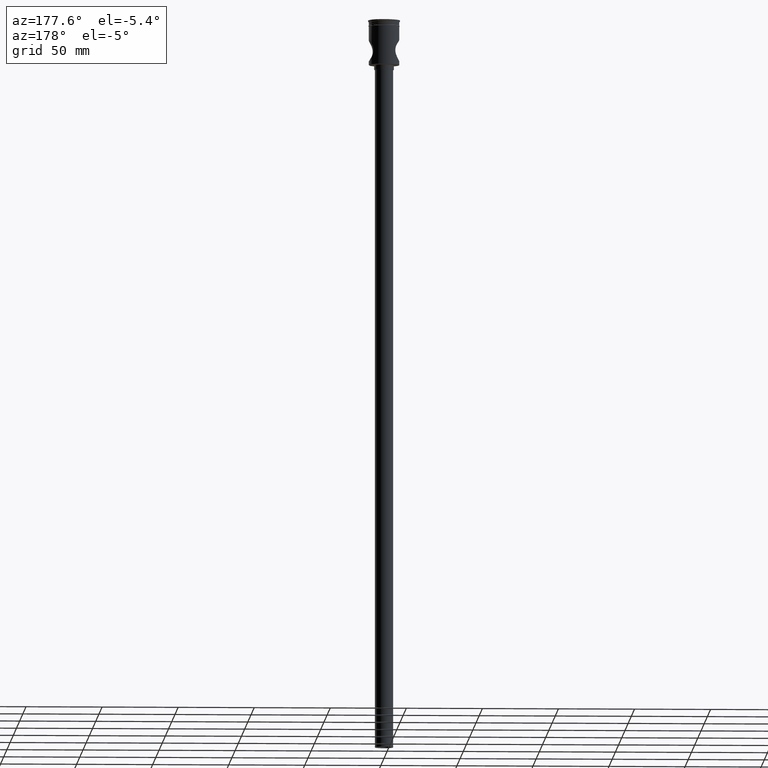
[diagram: clean part render]
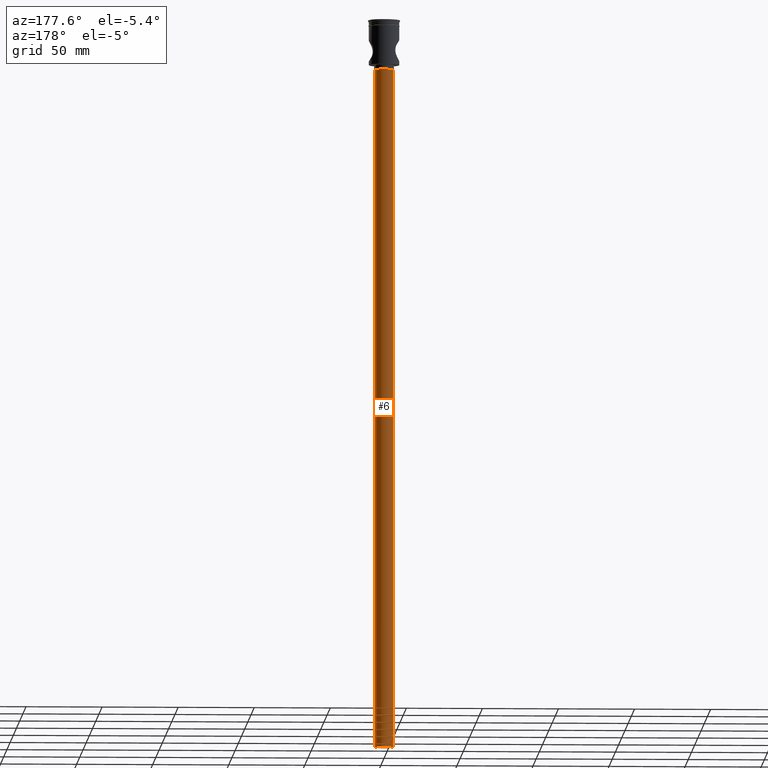
[diagram: same view with one face highlighted and labeled with its STEP entity id]
A machine part, auxiliary view. The second image highlights one B-rep face of the part: STEP entity #6.
In plain terms, the highlighted cylindrical surface (edge-blend (fillet) strip) has radius 6 mm, axis along (-0, -0, 1).
Its self-contained STEP definition (entity closure, byte-faithful):
#6 = ADVANCED_FACE ( 'NONE', ( #991 ), #1342, .T. ) ;
#21 = DIRECTION ( 'NONE',  ( -0.000000000000000000, -0.000000000000000000, 1.000000000000000000 ) ) ;
#28 = VERTEX_POINT ( 'NONE', #281 ) ;
#38 = DIRECTION ( 'NONE',  ( -1.000000000000000000, 0.000000000000000000, 0.000000000000000000 ) ) ;
#49 = LINE ( 'NONE', #1459, #871 ) ;
#101 = CARTESIAN_POINT ( 'NONE',  ( 0.000000000000000000, 0.000000000000000000, -32.50000000000000000 ) ) ;
#109 = DIRECTION ( 'NONE',  ( -1.000000000000000000, 0.000000000000000000, 0.000000000000000000 ) ) ;
#140 = EDGE_CURVE ( 'NONE', #164, #1113, #1492, .T. ) ;
#164 = VERTEX_POINT ( 'NONE', #590 ) ;
#169 = AXIS2_PLACEMENT_3D ( 'NONE', #101, #687, #109 ) ;
#176 = EDGE_CURVE ( 'NONE', #684, #1113, #498, .T. ) ;
#187 = DIRECTION ( 'NONE',  ( 0.000000000000000000, 0.000000000000000000, -1.000000000000000000 ) ) ;
#281 = CARTESIAN_POINT ( 'NONE',  ( -6.000000000000000888, 7.347880794884120722E-16, -479.5000000000000568 ) ) ;
#313 = DIRECTION ( 'NONE',  ( -0.000000000000000000, -0.000000000000000000, 1.000000000000000000 ) ) ;
#402 = CIRCLE ( 'NONE', #1258, 6.000000000000000888 ) ;
#448 = CARTESIAN_POINT ( 'NONE',  ( 6.000000000000000888, 0.000000000000000000, -479.5000000000000568 ) ) ;
#486 = ORIENTED_EDGE ( 'NONE', *, *, #769, .F. ) ;
#498 = CIRCLE ( 'NONE', #169, 6.000000000000000888 ) ;
#590 = CARTESIAN_POINT ( 'NONE',  ( 6.000000000000000888, 0.000000000000000000, -479.5000000000000568 ) ) ;
#645 = VECTOR ( 'NONE', #1377, 1000.000000000000000 ) ;
#662 = CARTESIAN_POINT ( 'NONE',  ( -6.000000000000000888, 7.347880794884120722E-16, -32.50000000000000000 ) ) ;
#684 = VERTEX_POINT ( 'NONE', #662 ) ;
#687 = DIRECTION ( 'NONE',  ( 0.000000000000000000, 0.000000000000000000, -1.000000000000000000 ) ) ;
#760 = EDGE_CURVE ( 'NONE', #28, #684, #49, .T. ) ;
#769 = EDGE_CURVE ( 'NONE', #28, #164, #402, .T. ) ;
#794 = ORIENTED_EDGE ( 'NONE', *, *, #176, .T. ) ;
#855 = DIRECTION ( 'NONE',  ( 1.000000000000000000, 0.000000000000000000, 0.000000000000000000 ) ) ;
#868 = ORIENTED_EDGE ( 'NONE', *, *, #760, .T. ) ;
#871 = VECTOR ( 'NONE', #313, 1000.000000000000000 ) ;
#877 = CARTESIAN_POINT ( 'NONE',  ( 0.000000000000000000, 0.000000000000000000, -479.5000000000000568 ) ) ;
#969 = AXIS2_PLACEMENT_3D ( 'NONE', #877, #21, #855 ) ;
#991 = FACE_OUTER_BOUND ( 'NONE', #1434, .T. ) ;
#1113 = VERTEX_POINT ( 'NONE', #1279 ) ;
#1258 = AXIS2_PLACEMENT_3D ( 'NONE', #1346, #187, #38 ) ;
#1279 = CARTESIAN_POINT ( 'NONE',  ( 6.000000000000000888, 0.000000000000000000, -32.50000000000000000 ) ) ;
#1342 = CYLINDRICAL_SURFACE ( 'NONE', #969, 6.000000000000000888 ) ;
#1346 = CARTESIAN_POINT ( 'NONE',  ( 0.000000000000000000, 0.000000000000000000, -479.5000000000000568 ) ) ;
#1377 = DIRECTION ( 'NONE',  ( -0.000000000000000000, -0.000000000000000000, 1.000000000000000000 ) ) ;
#1382 = ORIENTED_EDGE ( 'NONE', *, *, #140, .F. ) ;
#1434 = EDGE_LOOP ( 'NONE', ( #486, #868, #794, #1382 ) ) ;
#1459 = CARTESIAN_POINT ( 'NONE',  ( -6.000000000000000888, 7.347880794884120722E-16, -479.5000000000000568 ) ) ;
#1492 = LINE ( 'NONE', #448, #645 ) ;